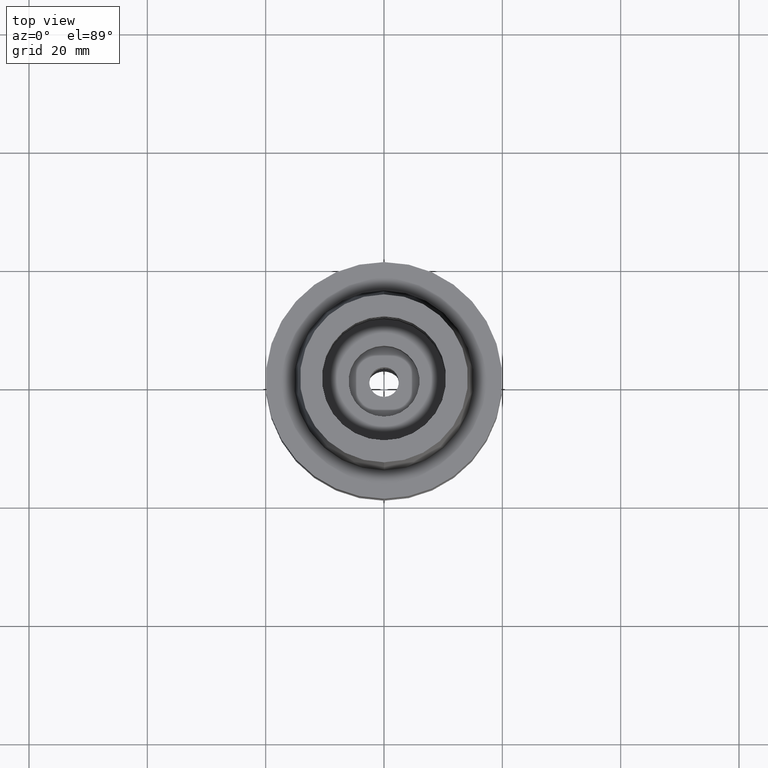
[diagram: clean part render]
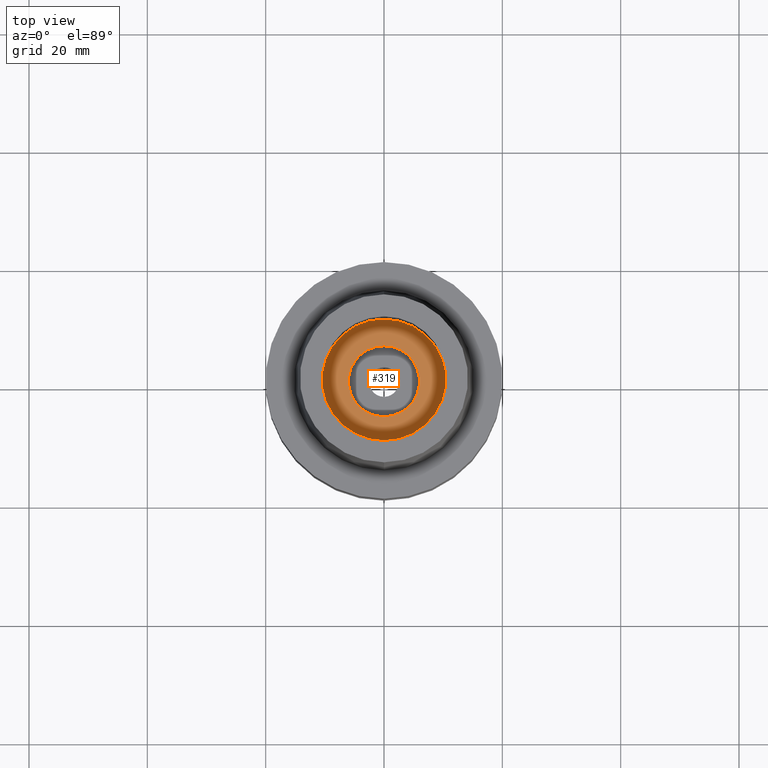
[diagram: same view with one face highlighted and labeled with its STEP entity id]
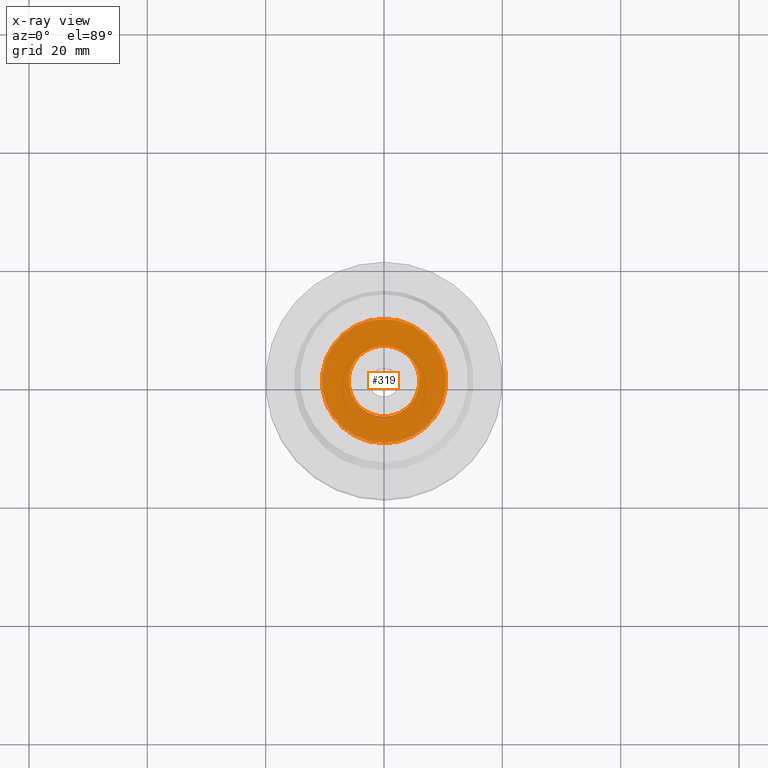
[diagram: x-ray of the same camera — body ghosted, the highlighted face saturated]
A machine part, top view. The second image highlights one B-rep face of the part: STEP entity #319.
The next image is the same camera in x-ray: the body ghosted, the highlighted face saturated — about 4% of this face is hidden behind the body in this view.
In plain terms, the highlighted planar face has unit normal (0, 0, 1).
Its self-contained STEP definition (entity closure, byte-faithful):
#1 = CIRCLE ( 'NONE', #127, 10.50000000000000000 ) ;
#29 = EDGE_LOOP ( 'NONE', ( #931, #2580 ) ) ;
#30 = CARTESIAN_POINT ( 'NONE',  ( 0.0000000000000000000, 6.000000000000000000, -7.950000000000000178 ) ) ;
#46 = AXIS2_PLACEMENT_3D ( 'NONE', #2475, #1080, #1683 ) ;
#79 = CARTESIAN_POINT ( 'NONE',  ( 0.0000000000000000000, 0.0000000000000000000, -7.950000000000000178 ) ) ;
#127 = AXIS2_PLACEMENT_3D ( 'NONE', #1113, #2129, #1947 ) ;
#168 = AXIS2_PLACEMENT_3D ( 'NONE', #794, #1253, #1432 ) ;
#264 = CARTESIAN_POINT ( 'NONE',  ( 0.0000000000000000000, 0.0000000000000000000, -7.950000000000000178 ) ) ;
#295 = AXIS2_PLACEMENT_3D ( 'NONE', #79, #908, #2046 ) ;
#319 = ADVANCED_FACE ( 'NONE', ( #838, #2327 ), #2534, .T. ) ;
#436 = EDGE_CURVE ( 'NONE', #2634, #737, #603, .T. ) ;
#603 = CIRCLE ( 'NONE', #2695, 10.50000000000000000 ) ;
#737 = VERTEX_POINT ( 'NONE', #1276 ) ;
#794 = CARTESIAN_POINT ( 'NONE',  ( 0.0000000000000000000, 0.0000000000000000000, -7.950000000000000178 ) ) ;
#838 = FACE_OUTER_BOUND ( 'NONE', #29, .T. ) ;
#908 = DIRECTION ( 'NONE',  ( 0.0000000000000000000, 0.0000000000000000000, 1.000000000000000000 ) ) ;
#931 = ORIENTED_EDGE ( 'NONE', *, *, #436, .F. ) ;
#1080 = DIRECTION ( 'NONE',  ( 0.0000000000000000000, 0.0000000000000000000, 1.000000000000000000 ) ) ;
#1108 = VERTEX_POINT ( 'NONE', #2343 ) ;
#1113 = CARTESIAN_POINT ( 'NONE',  ( 0.0000000000000000000, 0.0000000000000000000, -7.950000000000000178 ) ) ;
#1135 = CARTESIAN_POINT ( 'NONE',  ( 0.0000000000000000000, 10.50000000000000000, -7.950000000000000178 ) ) ;
#1253 = DIRECTION ( 'NONE',  ( 0.0000000000000000000, 0.0000000000000000000, 1.000000000000000000 ) ) ;
#1276 = CARTESIAN_POINT ( 'NONE',  ( 0.0000000000000000000, -10.50000000000000000, -7.950000000000000178 ) ) ;
#1432 = DIRECTION ( 'NONE',  ( 0.0000000000000000000, -1.000000000000000000, 0.0000000000000000000 ) ) ;
#1683 = DIRECTION ( 'NONE',  ( 1.000000000000000000, 0.0000000000000000000, 0.0000000000000000000 ) ) ;
#1696 = CIRCLE ( 'NONE', #295, 6.000000000000000000 ) ;
#1768 = EDGE_CURVE ( 'NONE', #2189, #1108, #1696, .T. ) ;
#1903 = EDGE_CURVE ( 'NONE', #1108, #2189, #2530, .T. ) ;
#1947 = DIRECTION ( 'NONE',  ( 0.0000000000000000000, -1.000000000000000000, 0.0000000000000000000 ) ) ;
#1976 = ORIENTED_EDGE ( 'NONE', *, *, #1903, .F. ) ;
#2046 = DIRECTION ( 'NONE',  ( 0.0000000000000000000, 1.000000000000000000, 0.0000000000000000000 ) ) ;
#2129 = DIRECTION ( 'NONE',  ( 0.0000000000000000000, 0.0000000000000000000, -1.000000000000000000 ) ) ;
#2189 = VERTEX_POINT ( 'NONE', #30 ) ;
#2327 = FACE_BOUND ( 'NONE', #2653, .T. ) ;
#2343 = CARTESIAN_POINT ( 'NONE',  ( 0.0000000000000000000, -6.000000000000000000, -7.950000000000000178 ) ) ;
#2351 = DIRECTION ( 'NONE',  ( 0.0000000000000000000, 0.0000000000000000000, -1.000000000000000000 ) ) ;
#2475 = CARTESIAN_POINT ( 'NONE',  ( 0.0000000000000000000, 0.0000000000000000000, -7.950000000000000178 ) ) ;
#2530 = CIRCLE ( 'NONE', #168, 6.000000000000000000 ) ;
#2534 = PLANE ( 'NONE',  #46 ) ;
#2550 = ORIENTED_EDGE ( 'NONE', *, *, #1768, .F. ) ;
#2580 = ORIENTED_EDGE ( 'NONE', *, *, #2638, .F. ) ;
#2587 = DIRECTION ( 'NONE',  ( 0.0000000000000000000, 1.000000000000000000, 0.0000000000000000000 ) ) ;
#2634 = VERTEX_POINT ( 'NONE', #1135 ) ;
#2638 = EDGE_CURVE ( 'NONE', #737, #2634, #1, .T. ) ;
#2653 = EDGE_LOOP ( 'NONE', ( #2550, #1976 ) ) ;
#2695 = AXIS2_PLACEMENT_3D ( 'NONE', #264, #2351, #2587 ) ;